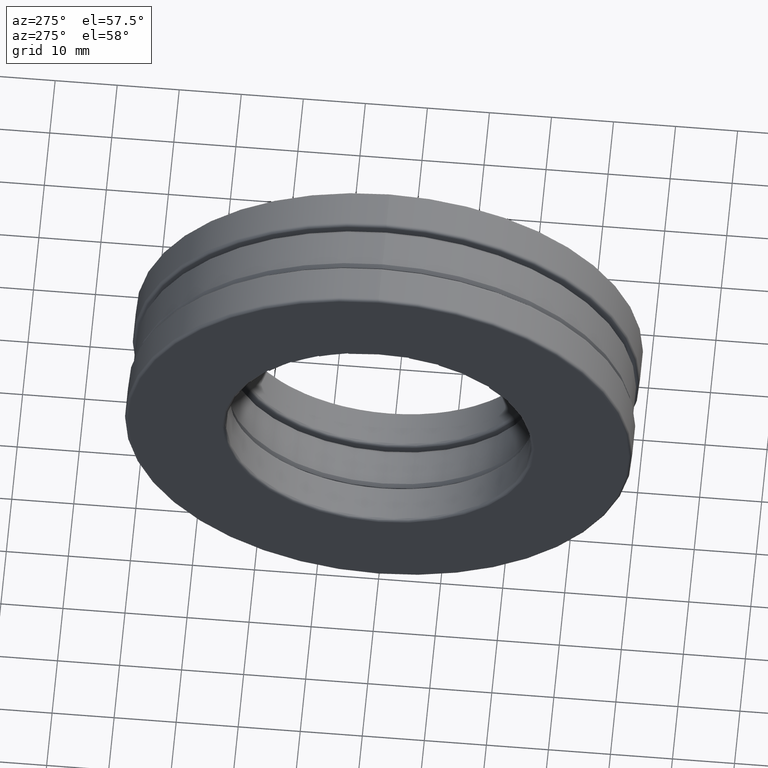
[diagram: clean part render]
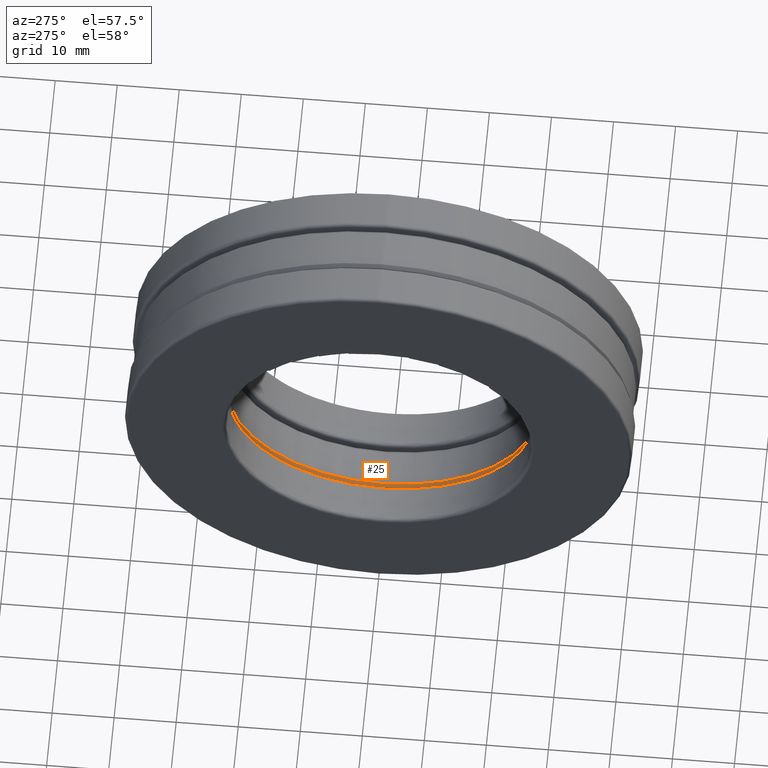
[diagram: same view with one face highlighted and labeled with its STEP entity id]
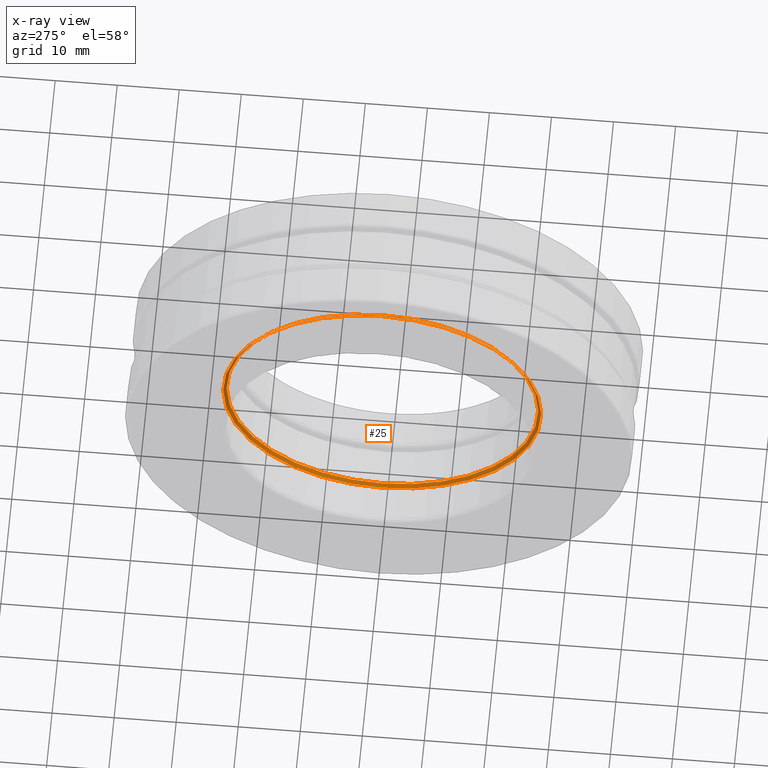
[diagram: x-ray of the same camera — body ghosted, the highlighted face saturated]
A machine part, auxiliary view. The second image highlights one B-rep face of the part: STEP entity #25.
The next image is the same camera in x-ray: the body ghosted, the highlighted face saturated — about 18% of this face is hidden behind the body in this view.
In plain terms, the highlighted conical surface has half-angle 45 deg.
Its self-contained STEP definition (entity closure, byte-faithful):
#25 = ADVANCED_FACE ( 'NONE', ( #191, #672 ), #1202, .F. ) ;
#37 = VERTEX_POINT ( 'NONE', #1035 ) ;
#49 = CIRCLE ( 'NONE', #956, 1.008750000000000000 ) ;
#54 = CIRCLE ( 'NONE', #643, 0.9887500000000001300 ) ;
#105 = EDGE_CURVE ( 'NONE', #561, #561, #54, .T. ) ;
#168 = DIRECTION ( 'NONE',  ( -1.000000000000000000, -0.0000000000000000000, -0.0000000000000000000 ) ) ;
#191 = FACE_BOUND ( 'NONE', #1161, .T. ) ;
#269 = DIRECTION ( 'NONE',  ( -1.000000000000000000, -0.0000000000000000000, -0.0000000000000000000 ) ) ;
#402 = ORIENTED_EDGE ( 'NONE', *, *, #594, .T. ) ;
#561 = VERTEX_POINT ( 'NONE', #688 ) ;
#583 = DIRECTION ( 'NONE',  ( -1.000000000000000000, -0.0000000000000000000, -0.0000000000000000000 ) ) ;
#587 = CARTESIAN_POINT ( 'NONE',  ( -0.1359999999999999000, 0.0000000000000000000, 0.0000000000000000000 ) ) ;
#594 = EDGE_CURVE ( 'NONE', #37, #37, #49, .T. ) ;
#600 = DIRECTION ( 'NONE',  ( 0.0000000000000000000, 0.0000000000000000000, 1.000000000000000000 ) ) ;
#643 = AXIS2_PLACEMENT_3D ( 'NONE', #833, #269, #717 ) ;
#672 = FACE_OUTER_BOUND ( 'NONE', #782, .T. ) ;
#688 = CARTESIAN_POINT ( 'NONE',  ( -0.1159999999999999100, 0.0000000000000000000, 0.9887500000000001300 ) ) ;
#717 = DIRECTION ( 'NONE',  ( 0.0000000000000000000, 0.0000000000000000000, 1.000000000000000000 ) ) ;
#782 = EDGE_LOOP ( 'NONE', ( #402 ) ) ;
#829 = ORIENTED_EDGE ( 'NONE', *, *, #105, .F. ) ;
#833 = CARTESIAN_POINT ( 'NONE',  ( -0.1159999999999999100, 0.0000000000000000000, 0.0000000000000000000 ) ) ;
#860 = CARTESIAN_POINT ( 'NONE',  ( -0.1359999999999999000, 0.0000000000000000000, 0.0000000000000000000 ) ) ;
#956 = AXIS2_PLACEMENT_3D ( 'NONE', #860, #168, #971 ) ;
#971 = DIRECTION ( 'NONE',  ( 0.0000000000000000000, 0.0000000000000000000, 1.000000000000000000 ) ) ;
#1035 = CARTESIAN_POINT ( 'NONE',  ( -0.1359999999999999000, 0.0000000000000000000, 1.008750000000000000 ) ) ;
#1050 = AXIS2_PLACEMENT_3D ( 'NONE', #587, #583, #600 ) ;
#1161 = EDGE_LOOP ( 'NONE', ( #829 ) ) ;
#1202 = CONICAL_SURFACE ( 'NONE', #1050, 1.008750000000000000, 0.7853981633974500600 ) ;